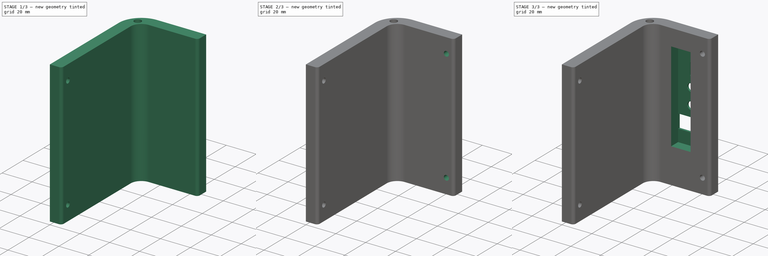
[diagram: build sequence overview — one tinted view per stage of 3, left to right]
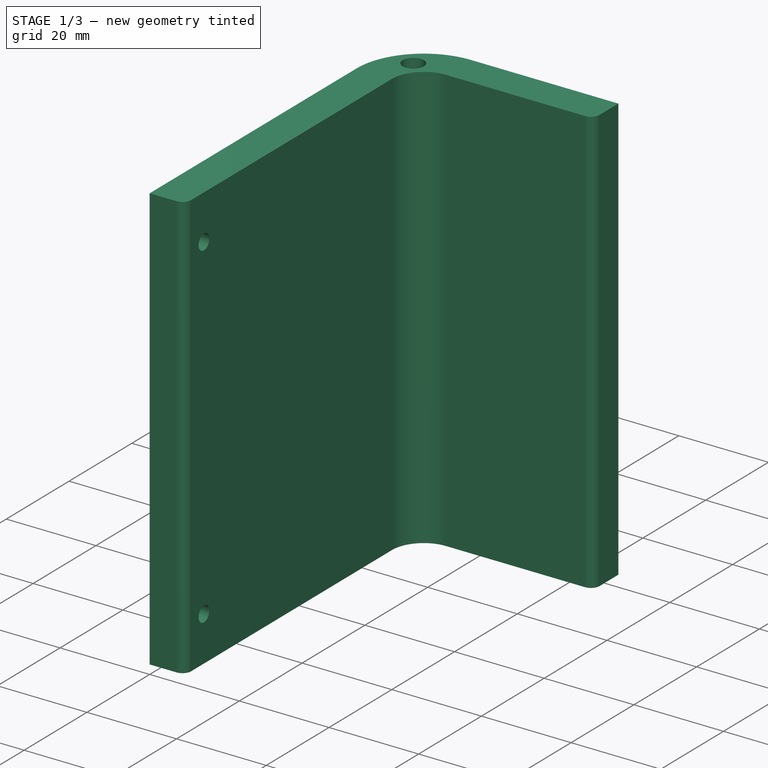
[diagram: stage 1 of 3 — iso view after this stage's code; geometry added in this stage tinted green]
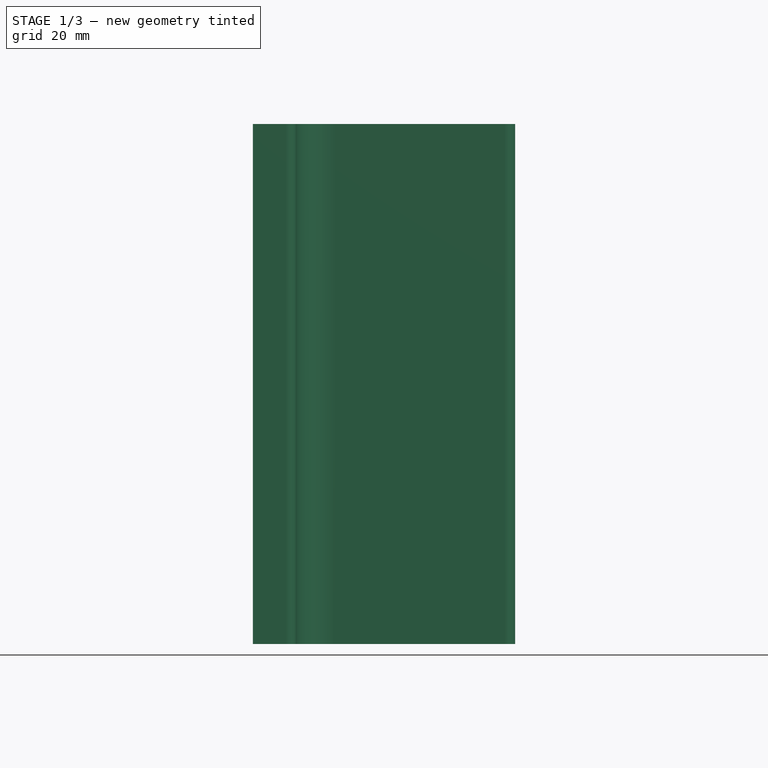
[diagram: stage 1 of 3 — front view after this stage's code; geometry added in this stage tinted green]
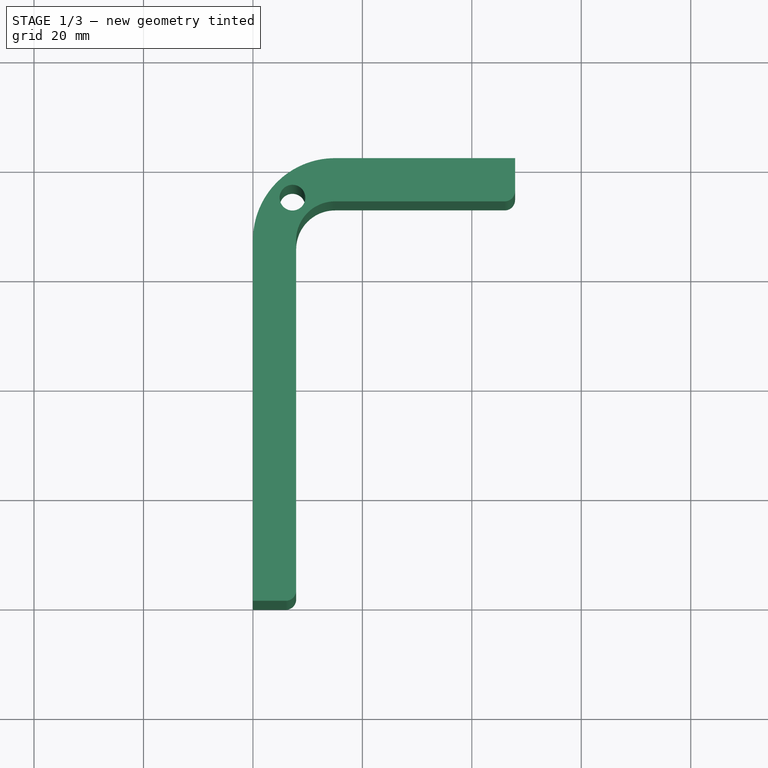
[diagram: stage 1 of 3 — top view after this stage's code; geometry added in this stage tinted green]
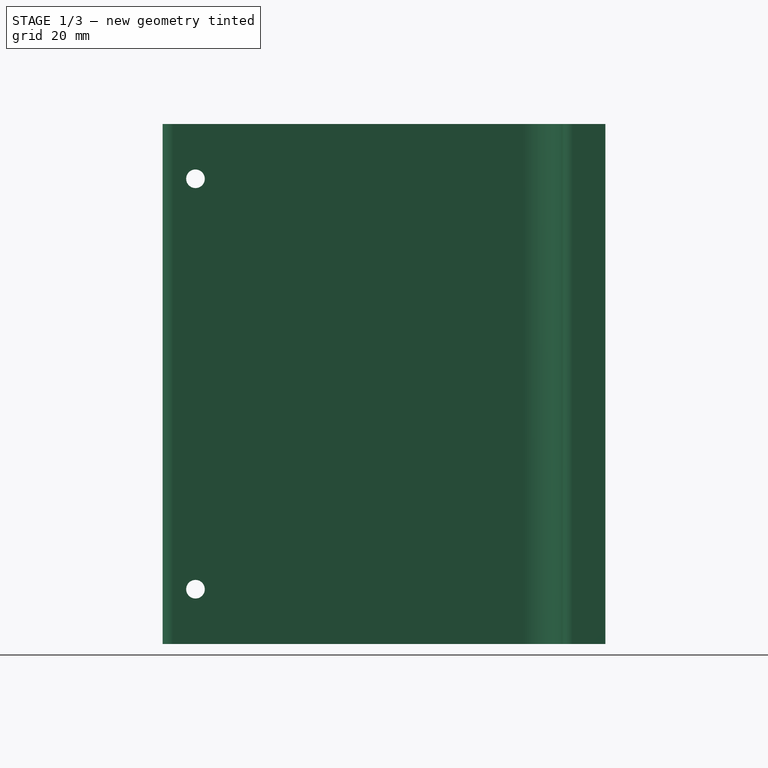
[diagram: stage 1 of 3 — right view after this stage's code; geometry added in this stage tinted green]
FCSTD DOCUMENT  (FreeCAD 0.19R23578 (Git))
Label: deckel
License: All rights reserved
LicenseURL: http://en.wikipedia.org/wiki/All_rights_reserved
objects: Sketcher::SketchObject×5, PartDesign::Hole×2, PartDesign::Pocket×2, PartDesign::Pad×1, PartDesign::Body×1
note: 16 computed .brp shape members not serialized (recipe doc carries the construction recipe); baked Part::Feature solids carry a one-line shape summary decoded from their .brp

FEATURE [Sketcher::SketchObject] Sketch
  MapMode = 5
  Support = -> [XY_Plane]
  sketch-geometry (11):
    g0: LineSegment StartX=0 StartY=0 StartZ=0 EndX=0 EndY=65.9 EndZ=0
    g1: LineSegment StartX=15 StartY=80.9 StartZ=0 EndX=47.9 EndY=80.9 EndZ=0
    g2: LineSegment StartX=47.9 StartY=80.9 StartZ=0 EndX=47.9 EndY=74.8998 EndZ=0
    g3: LineSegment StartX=46.0002 StartY=73 StartZ=0 EndX=14.9999 EndY=73 EndZ=0
    g4: LineSegment StartX=7.9 StartY=65.9001 StartZ=0 EndX=7.9 EndY=1.8998 EndZ=0
    g5: LineSegment StartX=6.0002 StartY=0 StartZ=0 EndX=0 EndY=0 EndZ=0
    g6: ArcOfCircle CenterX=15 CenterY=65.9 CenterZ=0 NormalX=0 NormalY=0 NormalZ=1 AngleXU=0 Radius=15 StartAngle=1.5708 EndAngle=3.14159
    g7: ArcOfCircle CenterX=14.9999 CenterY=65.9001 CenterZ=0 NormalX=0 NormalY=0 NormalZ=1 AngleXU=0 Radius=7.0999 StartAngle=1.5708 EndAngle=3.14159
    g8: ArcOfCircle CenterX=6.0002 CenterY=1.8998 CenterZ=0 NormalX=0 NormalY=0 NormalZ=1 AngleXU=0 Radius=1.8998 StartAngle=4.71239 EndAngle=6.28319
    g9: ArcOfCircle CenterX=46.0002 CenterY=74.8998 CenterZ=0 NormalX=0 NormalY=0 NormalZ=1 AngleXU=0 Radius=1.8998 StartAngle=4.71239 EndAngle=6.28319
    g10: Circle CenterX=7.2218 CenterY=73.6782 CenterZ=0 NormalX=0 NormalY=0 NormalZ=1 AngleXU=0 Radius=2.35
  constraints (28):
    c: Coincident(g-1,g0)
    c: Horizontal(g1)
    c: Coincident(g1,g2)
    c: Vertical(g2)
    c: Horizontal(g3)
    c: Vertical(g4)
    c: Coincident(g5,g0)
    c: Tangent(g1,g6) = 1.5708
    c: Tangent(g0,g6) = 1.5708
    c: Tangent(g3,g7) = -1.5708
    c: Tangent(g4,g7) = -1.5708
    c: Tangent(g4,g8) = 1.5708
    c: Tangent(g5,g8) = 1.5708
    c: Tangent(g2,g9) = 1.5708
    c: Tangent(g3,g9) = 1.5708
    c: Horizontal(g5)
    c: Radius(g10) = 2.35
    c: Radius(g7) = 7.0999
    c: Radius(g6) = 15
    c: Vertical(g0)
    c: Radius(g8) = 1.8998
    c: Equal(g8,g9)
    c: DistanceY(g3,g1) = 7.9
    c: DistanceX(g0,g1) = 47.9
    c: DistanceY(g0,g1) = 80.9
    c: Equal(g5,g2)
    c: DistanceY(g0,g10) = 73.6782
    c: DistanceX(g0,g10) = 7.2218
FEATURE [PartDesign::Pad] Pad
  Direction = (1,1,1)
  Length = 95
  Length2 = 100
  Profile = -> Sketch
  Type = 0
FEATURE [Sketcher::SketchObject] Sketch001
  MapMode = 5
  Placement = pos=(0,0,0) rot=(0.57735,-0.57735,-0.57735;2.0944rad)
  Support = -> [Pad]
  sketch-geometry (3):
    g0: Circle CenterX=-6 CenterY=10 CenterZ=0 NormalX=0 NormalY=0 NormalZ=1 AngleXU=0 Radius=2
    g1: Circle CenterX=-6 CenterY=85 CenterZ=0 NormalX=0 NormalY=0 NormalZ=1 AngleXU=0 Radius=2
    g2: LineSegment StartX=-6 StartY=85 StartZ=0 EndX=-6 EndY=10 EndZ=0
  constraints (8):
    c: Coincident(g2,g1)
    c: Coincident(g2,g0)
    c: Vertical(g2)
    c: Radius(g1) = 2
    c: Equal(g1,g0)
    c: DistanceX(g0,g-1) = 6
    c: DistanceY(g-1,g0) = 10
    c: DistanceY(g2,g2) = 75
FEATURE [PartDesign::Hole] Hole
  BaseFeature = -> Pad
  Depth = 25
  DepthType = 1
  Diameter = 3.4
  DrillPoint = 0
  DrillPointAngle = 118
  HoleCutCountersinkAngle = 90
  HoleCutDepth = 3.4
  HoleCutDiameter = 6
  HoleCutType = 11
  ModelActualThread = false
  Profile = -> Sketch001
  Tapered = false
  TaperedAngle = 90
  ThreadAngle = 0
  ThreadClass = 0
  ThreadCutOffInner = 0
  ThreadCutOffOuter = 0
  ThreadDirection = 0
  ThreadFit = 0
  ThreadPitch = 0
  ThreadSize = 9
  ThreadType = 1
  Threaded = false
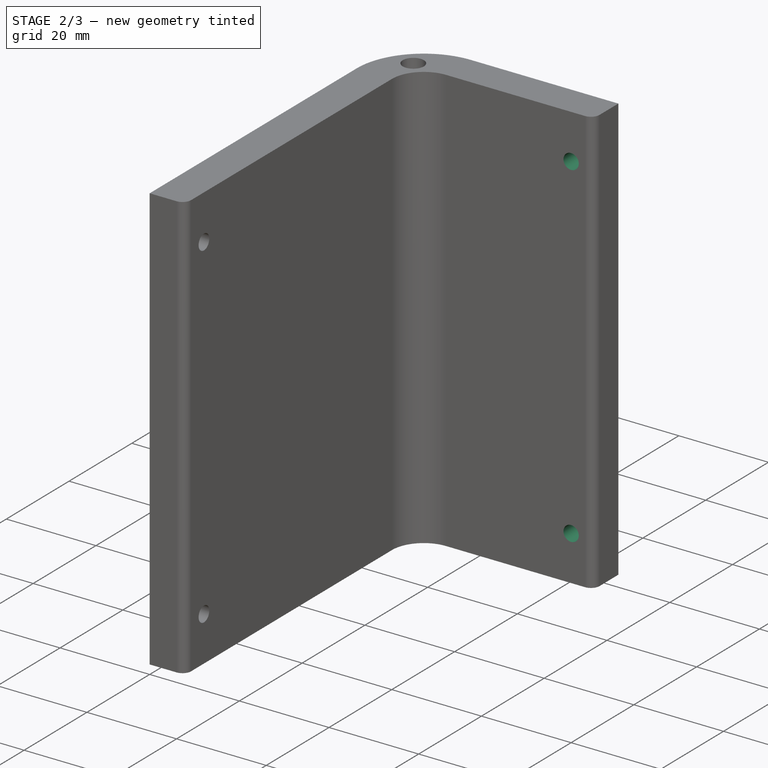
[diagram: stage 2 of 3 — iso view after this stage's code; geometry added in this stage tinted green]
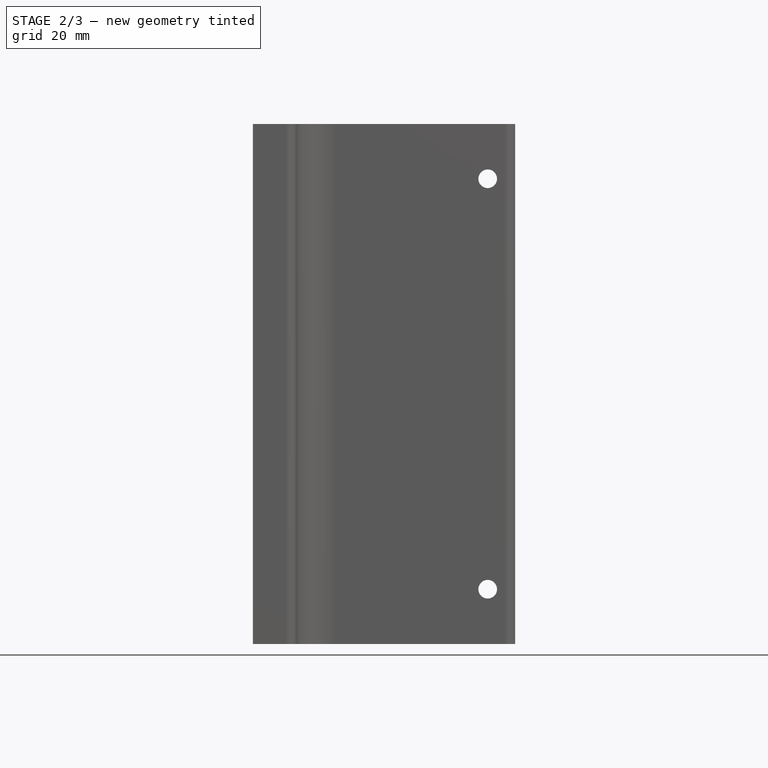
[diagram: stage 2 of 3 — front view after this stage's code; geometry added in this stage tinted green]
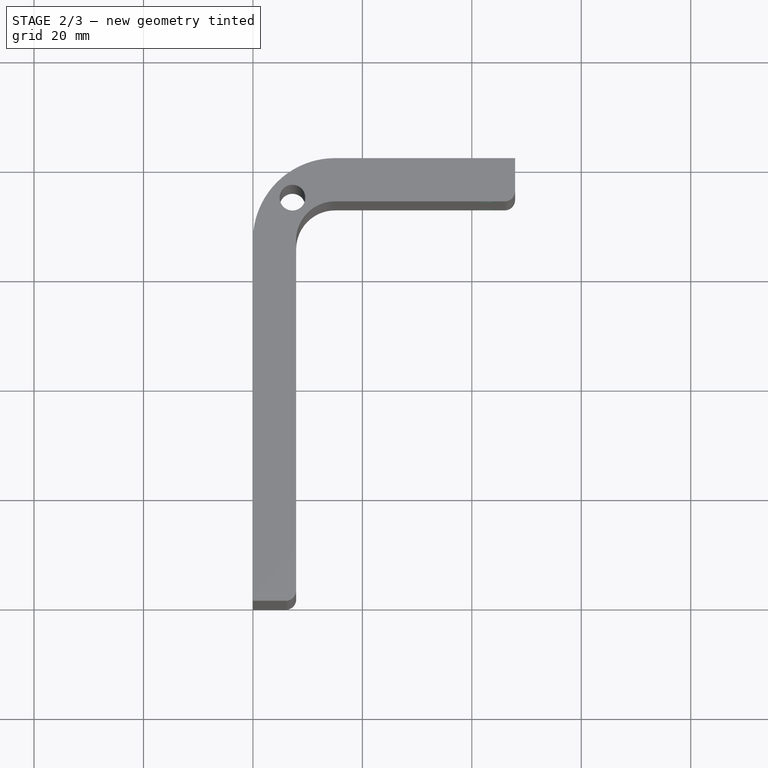
[diagram: stage 2 of 3 — top view after this stage's code; geometry added in this stage tinted green]
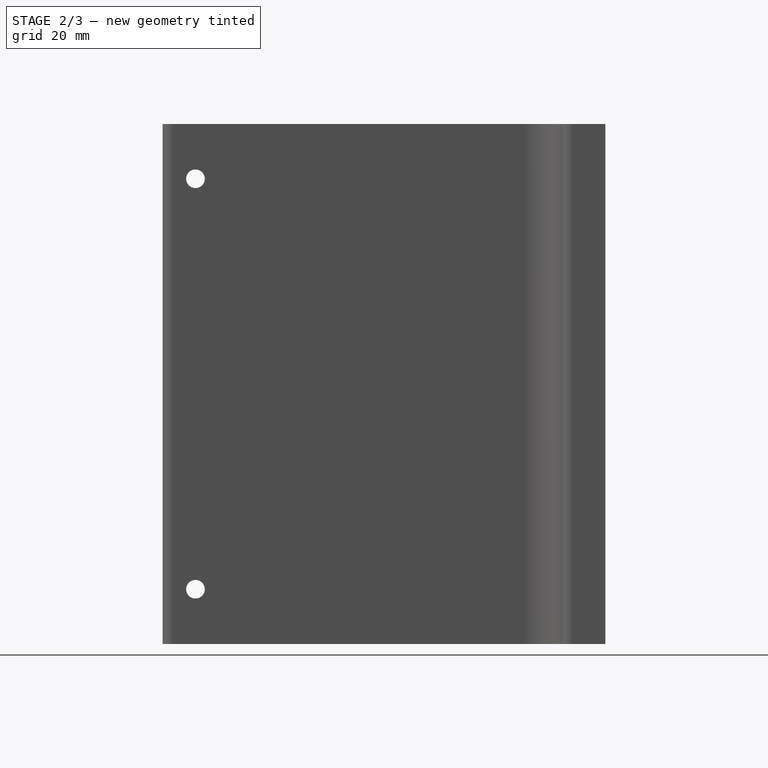
[diagram: stage 2 of 3 — right view after this stage's code; geometry added in this stage tinted green]
FEATURE [Sketcher::SketchObject] Sketch002
  ExternalGeometry = -> [Hole]
  MapMode = 5
  Placement = pos=(0,80.9,0) rot=(0,0.707107,0.707107;3.14159rad)
  Support = -> [Hole]
  sketch-geometry (3):
    g0: Circle CenterX=-42.9 CenterY=10 CenterZ=0 NormalX=0 NormalY=0 NormalZ=1 AngleXU=0 Radius=2
    g1: Circle CenterX=-42.9 CenterY=85 CenterZ=0 NormalX=0 NormalY=0 NormalZ=1 AngleXU=0 Radius=2
    g2: LineSegment StartX=-42.9 StartY=85 StartZ=0 EndX=-42.9 EndY=10 EndZ=0
  constraints (8):
    c: Coincident(g2,g1)
    c: Coincident(g2,g0)
    c: Vertical(g2)
    c: Radius(g0) = 2
    c: Equal(g0,g1)
    c: DistanceX(g-3,g0) = 5
    c: DistanceY(g-3,g0) = 10
    c: DistanceY(g2,g2) = 75
FEATURE [PartDesign::Hole] Hole001
  BaseFeature = -> Hole
  Depth = 25
  DepthType = 1
  Diameter = 3.4
  DrillPoint = 1
  DrillPointAngle = 118
  HoleCutCountersinkAngle = 90
  HoleCutDepth = 3.4
  HoleCutDiameter = 6
  HoleCutType = 11
  ModelActualThread = false
  Profile = -> Sketch002
  Tapered = false
  TaperedAngle = 90
  ThreadAngle = 0
  ThreadClass = 0
  ThreadCutOffInner = 0
  ThreadCutOffOuter = 0
  ThreadDirection = 0
  ThreadFit = 0
  ThreadPitch = 0
  ThreadSize = 9
  ThreadType = 1
  Threaded = false
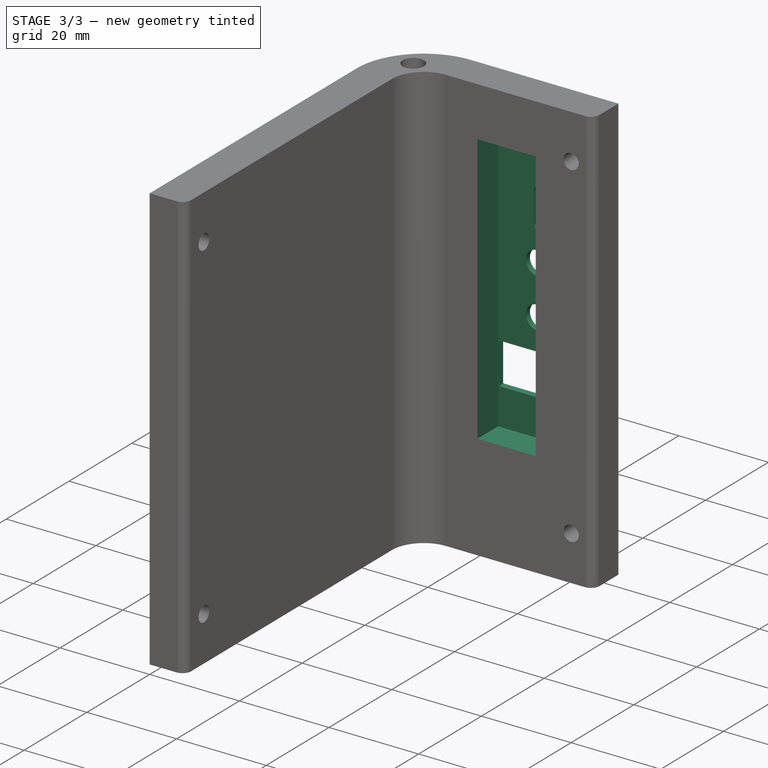
[diagram: stage 3 of 3 — iso view after this stage's code; geometry added in this stage tinted green]
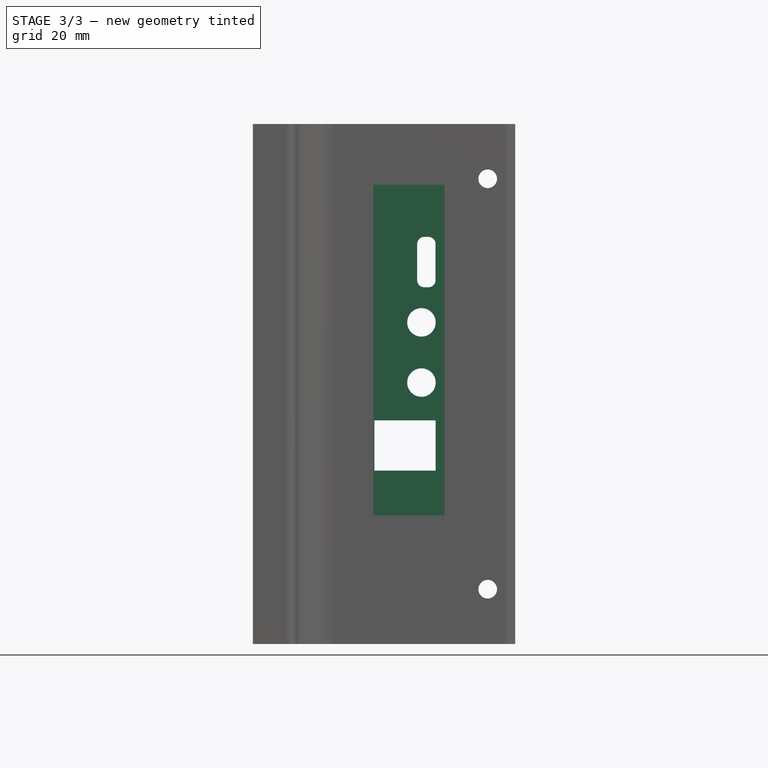
[diagram: stage 3 of 3 — front view after this stage's code; geometry added in this stage tinted green]
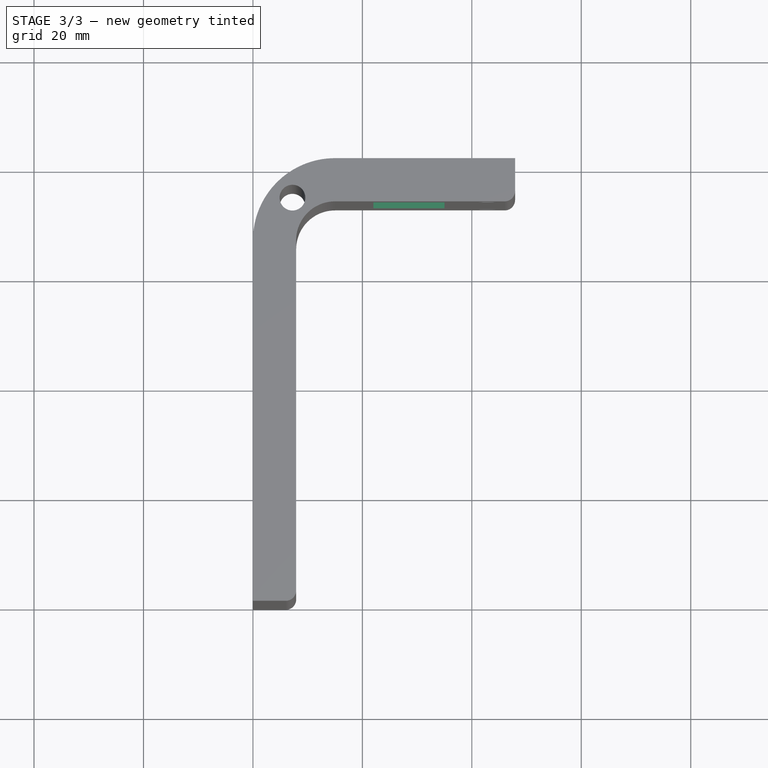
[diagram: stage 3 of 3 — top view after this stage's code; geometry added in this stage tinted green]
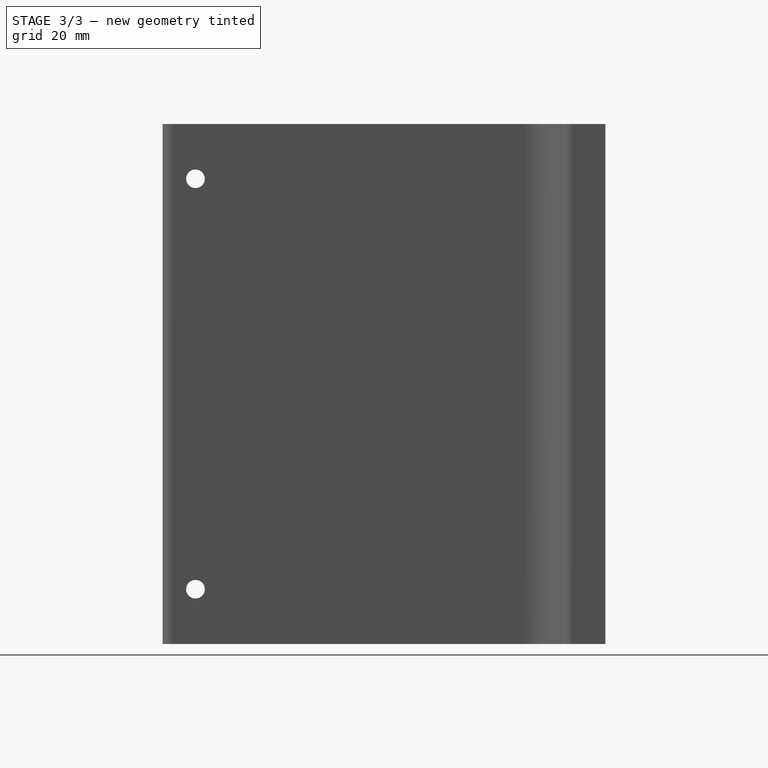
[diagram: stage 3 of 3 — right view after this stage's code; geometry added in this stage tinted green]
FEATURE [Sketcher::SketchObject] Sketch003
  MapMode = 5
  Placement = pos=(0,80.9,0) rot=(0,0.707107,0.707107;3.14159rad)
  Support = -> [Hole001]
  sketch-geometry (15):
    g0: LineSegment StartX=-31.31 StartY=74.38 StartZ=0 EndX=-32.07 EndY=74.38 EndZ=0
    g1: LineSegment StartX=-33.37 StartY=73.08 StartZ=0 EndX=-33.37 EndY=66.48 EndZ=0
    g2: LineSegment StartX=-32.07 StartY=65.18 StartZ=0 EndX=-31.31 EndY=65.18 EndZ=0
    g3: LineSegment StartX=-30.01 StartY=66.48 StartZ=0 EndX=-30.01 EndY=73.08 EndZ=0
    g4: LineSegment StartX=-22.19 StartY=40.86 StartZ=0 EndX=-33.39 EndY=40.86 EndZ=0
    g5: LineSegment StartX=-33.39 StartY=40.86 StartZ=0 EndX=-33.39 EndY=31.66 EndZ=0
    g6: LineSegment StartX=-33.39 StartY=31.66 StartZ=0 EndX=-22.19 EndY=31.66 EndZ=0
    g7: LineSegment StartX=-22.19 StartY=31.66 StartZ=0 EndX=-22.19 EndY=40.86 EndZ=0
    g8: Circle CenterX=-30.79 CenterY=58.76 CenterZ=0 NormalX=0 NormalY=0 NormalZ=1 AngleXU=0 Radius=2.6
    g9: Circle CenterX=-30.79 CenterY=47.76 CenterZ=0 NormalX=0 NormalY=0 NormalZ=1 AngleXU=0 Radius=2.6
    g10: ArcOfCircle CenterX=-31.31 CenterY=66.48 CenterZ=0 NormalX=0 NormalY=0 NormalZ=1 AngleXU=0 Radius=1.3 StartAngle=4.71239 EndAngle=6.28319
    g11: ArcOfCircle CenterX=-32.07 CenterY=66.48 CenterZ=0 NormalX=0 NormalY=0 NormalZ=1 AngleXU=0 Radius=1.3 StartAngle=3.14159 EndAngle=4.71239
    g12: ArcOfCircle CenterX=-32.07 CenterY=73.08 CenterZ=0 NormalX=0 NormalY=0 NormalZ=1 AngleXU=0 Radius=1.3 StartAngle=1.5708 EndAngle=3.14159
    g13: ArcOfCircle CenterX=-31.31 CenterY=73.08 CenterZ=0 NormalX=0 NormalY=0 NormalZ=1 AngleXU=0 Radius=1.3 StartAngle=9e-16 EndAngle=1.5708
    g14: LineSegment StartX=-30.79 StartY=58.76 StartZ=0 EndX=-30.79 EndY=47.76 EndZ=0
  constraints (40):
    c: Horizontal(g0)
    c: Horizontal(g2)
    c: Vertical(g1)
    c: Vertical(g3)
    c: Coincident(g4,g5)
    c: Coincident(g5,g6)
    c: Coincident(g6,g7)
    c: Coincident(g7,g4)
    c: Horizontal(g4)
    c: Horizontal(g6)
    c: Vertical(g5)
    c: Vertical(g7)
    c: Tangent(g3,g10) = -1.5708
    c: Tangent(g2,g10) = -1.5708
    c: Tangent(g2,g11) = -1.5708
    c: Tangent(g1,g11) = -1.5708
    c: Tangent(g1,g12) = -1.5708
    c: Tangent(g0,g12) = -1.5708
    c: Tangent(g0,g13) = -1.5708
    c: Tangent(g3,g13) = -1.5708
    c: Radius(g13) = 1.3
    c: Equal(g13,g12)
    c: Equal(g13,g11)
    c: Equal(g13,g10)
    c: Radius(g9) = 2.6
    c: Equal(g9,g8)
    c: Coincident(g14,g8)
    c: Coincident(g14,g9)
    c: Vertical(g14)
    c: DistanceY(g-1,g6) = 31.66
    c: DistanceX(g6,g-1) = 22.19
    c: DistanceX(g6,g6) = 11.2
    c: DistanceY(g5,g5) = 9.2
    c: DistanceY(g4,g9) = 6.9
    c: DistanceX(g4,g9) = 2.6
    c: DistanceY(g14,g14) = 11
    c: DistanceX(g3,g-1) = 30.01
    c: DistanceY(g2,g0) = 9.2
    c: DistanceX(g1,g3) = 3.36
    c: DistanceY(g-1,g2) = 65.18
FEATURE [PartDesign::Pocket] Pocket
  BaseFeature = -> Hole001
  Length = 5
  Length2 = 100
  Profile = -> Sketch003
  Type = 1
FEATURE [Sketcher::SketchObject] Sketch004
  MapMode = 5
  Placement = pos=(0,73,0) rot=(1,0,0;1.5708rad)
  Support = -> [Pocket]
  sketch-geometry (4):
    g0: LineSegment StartX=35 StartY=83.9 StartZ=0 EndX=22 EndY=83.9 EndZ=0
    g1: LineSegment StartX=22 StartY=83.9 StartZ=0 EndX=22 EndY=23.5 EndZ=0
    g2: LineSegment StartX=22 StartY=23.5 StartZ=0 EndX=35 EndY=23.5 EndZ=0
    g3: LineSegment StartX=35 StartY=23.5 StartZ=0 EndX=35 EndY=83.9 EndZ=0
  constraints (12):
    c: Coincident(g0,g1)
    c: Coincident(g1,g2)
    c: Coincident(g2,g3)
    c: Coincident(g3,g0)
    c: Horizontal(g0)
    c: Horizontal(g2)
    c: Vertical(g1)
    c: Vertical(g3)
    c: DistanceY(g3,g3) = 60.4
    c: DistanceX(g0,g0) = 13
    c: DistanceX(g-1,g1) = 22
    c: DistanceY(g-1,g1) = 23.5
FEATURE [PartDesign::Pocket] Pocket001
  BaseFeature = -> Pocket
  Length = 6.6
  Length2 = 100
  Profile = -> Sketch004
  Type = 0
FEATURE [PartDesign::Body] Body  label="Deckel"
  Group = -> [Sketch,Pad,Sketch001,Hole,Sketch002,Hole001,Sketch003,Pocket,Sketch004,Pocket001]
  Origin = -> Origin
  Tip = -> Pocket001
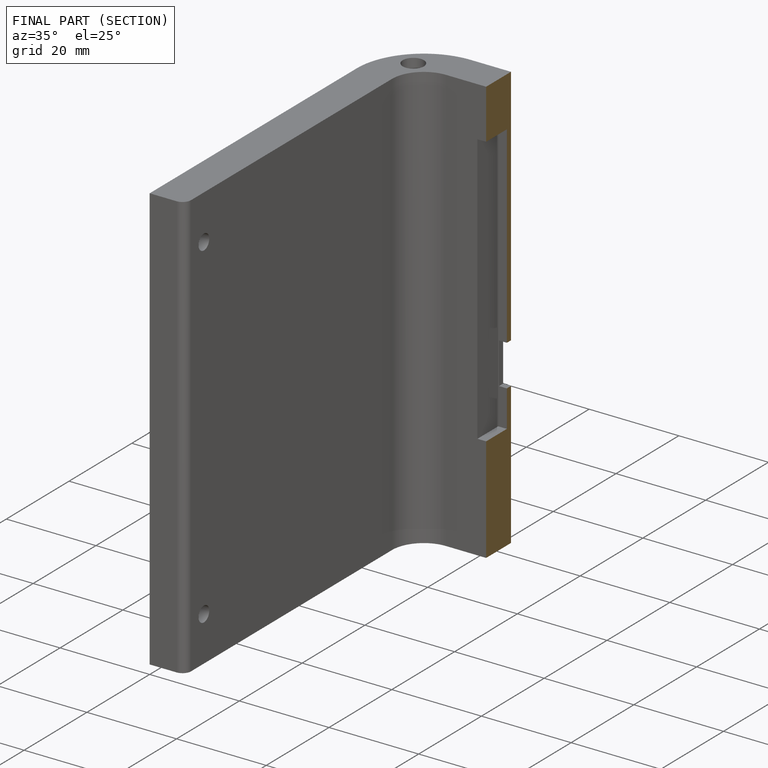
[diagram: finished part — half-section view (interior)]
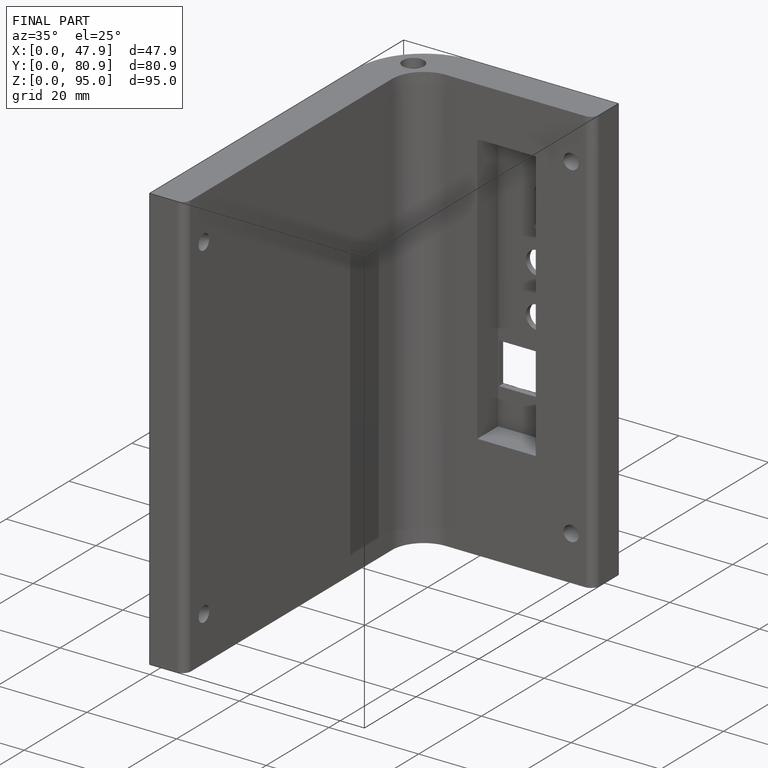
[diagram: finished part — iso view with bounding-box wireframe]
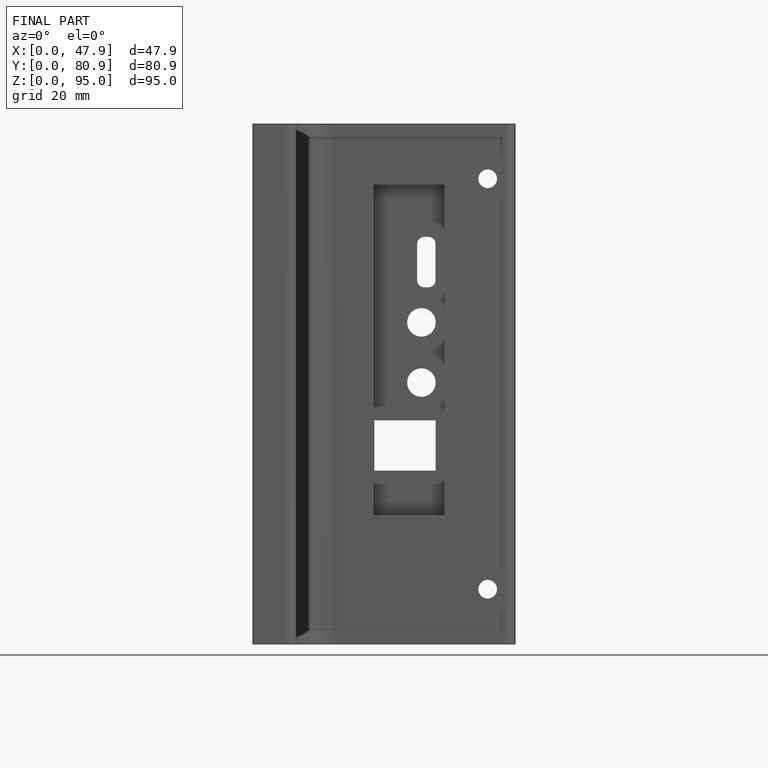
[diagram: finished part — front view with bounding-box wireframe]
